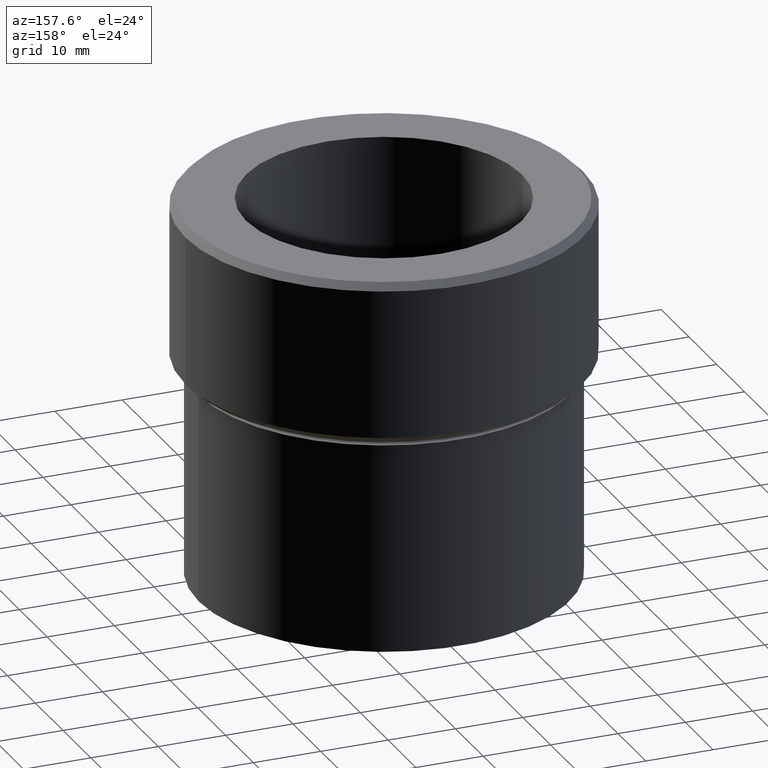
[diagram: clean part render]
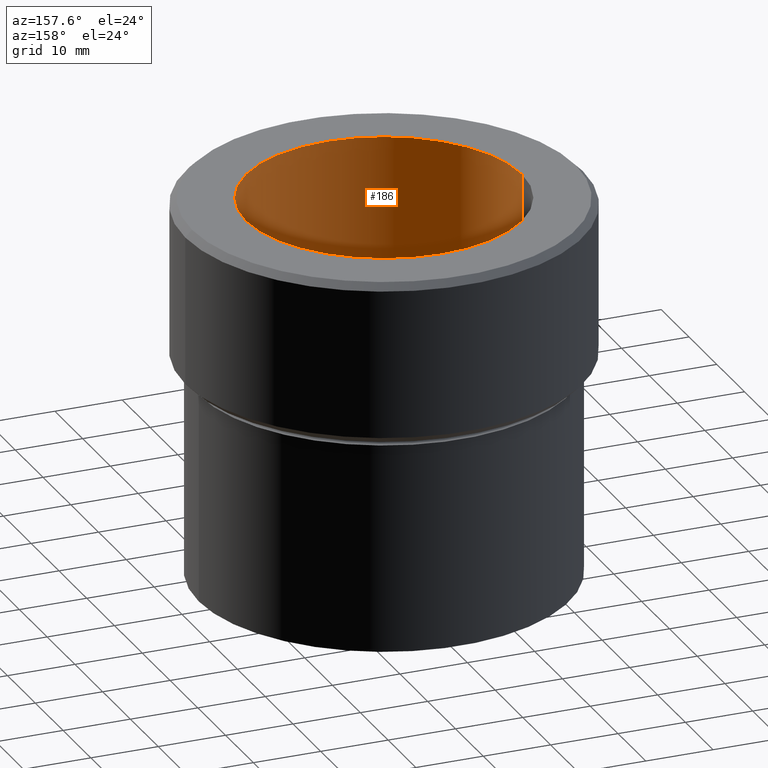
[diagram: same view with one face highlighted and labeled with its STEP entity id]
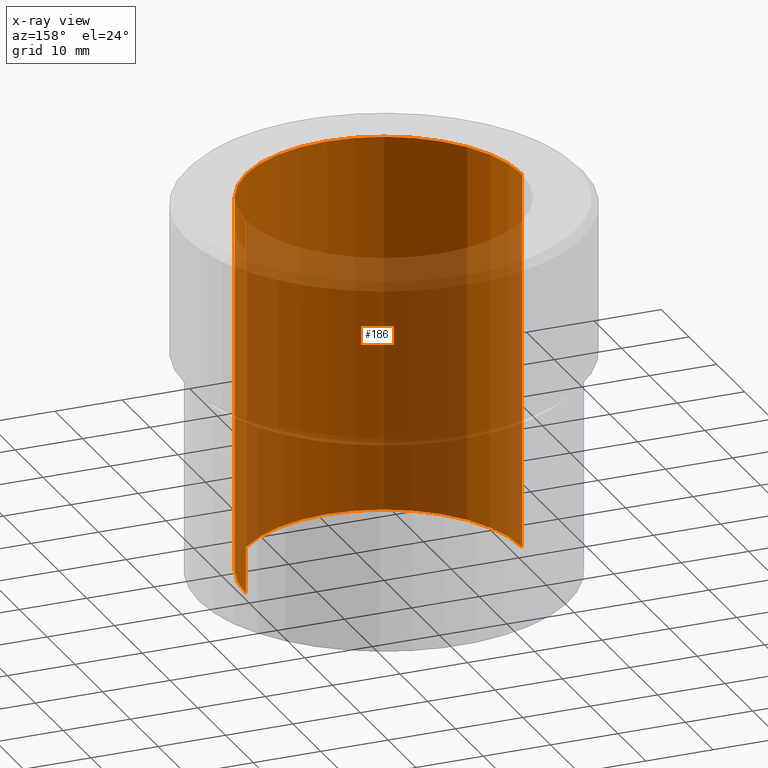
[diagram: x-ray of the same camera — body ghosted, the highlighted face saturated]
A machine part, auxiliary view. The second image highlights one B-rep face of the part: STEP entity #186.
The next image is the same camera in x-ray: the body ghosted, the highlighted face saturated — about 74% of this face is hidden behind the body in this view.
In plain terms, the highlighted cylindrical surface (partial cylindrical patch) has radius 20.5 mm, axis along (-0, -0, 1).
Its self-contained STEP definition (entity closure, byte-faithful):
#6 = AXIS2_PLACEMENT_3D ( 'NONE', #429, #229, #460 ) ;
#7 = CARTESIAN_POINT ( 'NONE',  ( 20.50000000000000000, 0.000000000000000000, -56.00000000000000711 ) ) ;
#14 = VECTOR ( 'NONE', #524, 1000.000000000000000 ) ;
#16 = CARTESIAN_POINT ( 'NONE',  ( -20.50000000000000000, 2.510525938252074481E-15, -56.00000000000000711 ) ) ;
#18 = CYLINDRICAL_SURFACE ( 'NONE', #425, 20.50000000000000000 ) ;
#19 = EDGE_CURVE ( 'NONE', #439, #81, #264, .T. ) ;
#28 = CARTESIAN_POINT ( 'NONE',  ( -20.50000000000000000, 2.510525938252074481E-15, -75.00000000000000000 ) ) ;
#35 = LINE ( 'NONE', #284, #100 ) ;
#45 = ORIENTED_EDGE ( 'NONE', *, *, #319, .T. ) ;
#47 = DIRECTION ( 'NONE',  ( 1.000000000000000000, 0.000000000000000000, 0.000000000000000000 ) ) ;
#48 = CIRCLE ( 'NONE', #509, 20.50000000000000000 ) ;
#72 = ORIENTED_EDGE ( 'NONE', *, *, #401, .F. ) ;
#81 = VERTEX_POINT ( 'NONE', #16 ) ;
#99 = DIRECTION ( 'NONE',  ( 1.000000000000000000, 0.000000000000000000, 0.000000000000000000 ) ) ;
#100 = VECTOR ( 'NONE', #163, 1000.000000000000000 ) ;
#124 = EDGE_LOOP ( 'NONE', ( #364, #45, #379, #72 ) ) ;
#163 = DIRECTION ( 'NONE',  ( -0.000000000000000000, -0.000000000000000000, 1.000000000000000000 ) ) ;
#182 = CARTESIAN_POINT ( 'NONE',  ( 0.000000000000000000, 0.000000000000000000, -75.00000000000000000 ) ) ;
#186 = ADVANCED_FACE ( 'NONE', ( #386 ), #18, .F. ) ;
#199 = LINE ( 'NONE', #28, #14 ) ;
#213 = CARTESIAN_POINT ( 'NONE',  ( -20.50000000000000000, 2.510525938252074481E-15, 0.000000000000000000 ) ) ;
#229 = DIRECTION ( 'NONE',  ( 0.000000000000000000, 0.000000000000000000, -1.000000000000000000 ) ) ;
#264 = CIRCLE ( 'NONE', #6, 20.50000000000000000 ) ;
#284 = CARTESIAN_POINT ( 'NONE',  ( 20.50000000000000000, 0.000000000000000000, -75.00000000000000000 ) ) ;
#319 = EDGE_CURVE ( 'NONE', #81, #496, #199, .T. ) ;
#331 = CARTESIAN_POINT ( 'NONE',  ( 0.000000000000000000, 0.000000000000000000, 0.000000000000000000 ) ) ;
#364 = ORIENTED_EDGE ( 'NONE', *, *, #19, .T. ) ;
#379 = ORIENTED_EDGE ( 'NONE', *, *, #500, .T. ) ;
#386 = FACE_OUTER_BOUND ( 'NONE', #124, .T. ) ;
#401 = EDGE_CURVE ( 'NONE', #439, #437, #35, .T. ) ;
#425 = AXIS2_PLACEMENT_3D ( 'NONE', #182, #510, #99 ) ;
#429 = CARTESIAN_POINT ( 'NONE',  ( 0.000000000000000000, 0.000000000000000000, -56.00000000000000711 ) ) ;
#437 = VERTEX_POINT ( 'NONE', #494 ) ;
#439 = VERTEX_POINT ( 'NONE', #7 ) ;
#460 = DIRECTION ( 'NONE',  ( -1.000000000000000000, 0.000000000000000000, 0.000000000000000000 ) ) ;
#494 = CARTESIAN_POINT ( 'NONE',  ( 20.50000000000000000, 0.000000000000000000, 0.000000000000000000 ) ) ;
#496 = VERTEX_POINT ( 'NONE', #213 ) ;
#498 = DIRECTION ( 'NONE',  ( -0.000000000000000000, -0.000000000000000000, 1.000000000000000000 ) ) ;
#500 = EDGE_CURVE ( 'NONE', #496, #437, #48, .T. ) ;
#509 = AXIS2_PLACEMENT_3D ( 'NONE', #331, #498, #47 ) ;
#510 = DIRECTION ( 'NONE',  ( -0.000000000000000000, -0.000000000000000000, 1.000000000000000000 ) ) ;
#524 = DIRECTION ( 'NONE',  ( -0.000000000000000000, -0.000000000000000000, 1.000000000000000000 ) ) ;